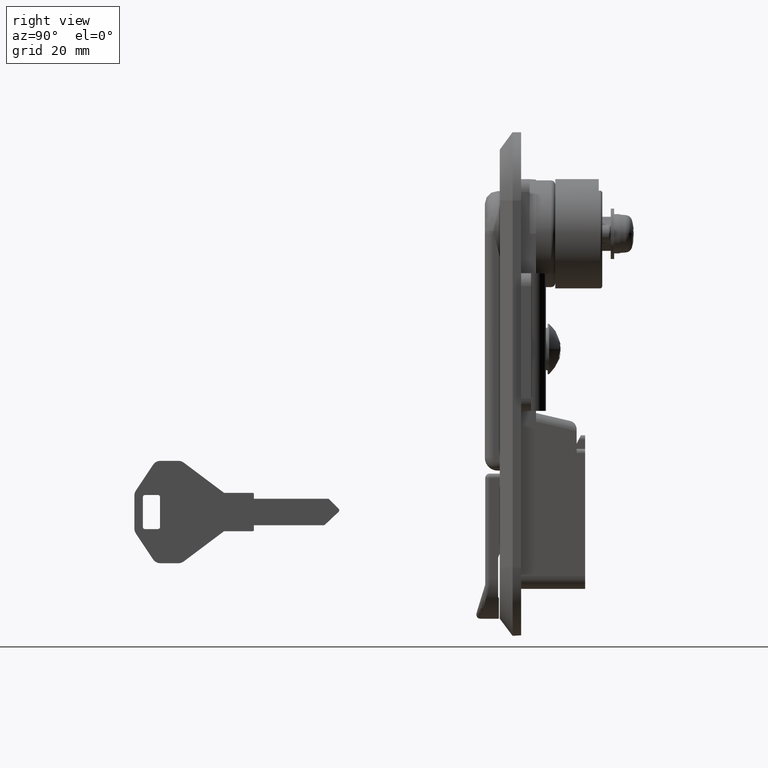
[diagram: clean part render]
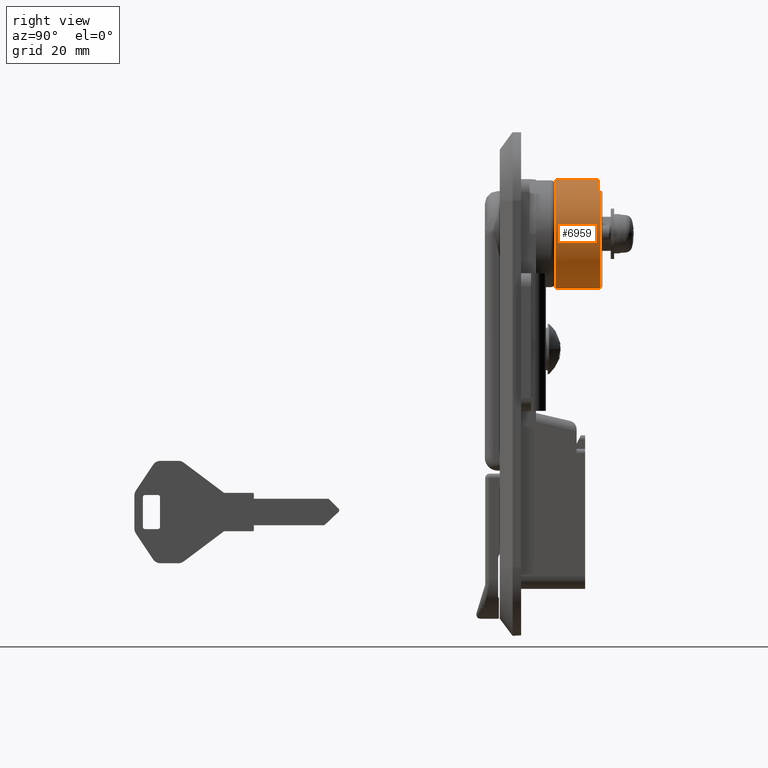
[diagram: same view with one face highlighted and labeled with its STEP entity id]
A machine part, right view. The second image highlights one B-rep face of the part: STEP entity #6959.
In plain terms, the highlighted cylindrical surface (partial cylindrical patch) has radius 12.8 mm, axis along (0, -1, 0).
Its self-contained STEP definition (entity closure, byte-faithful):
#6827 = VERTEX_POINT ( 'NONE', #12601 ) ;
#6829 = EDGE_CURVE ( 'NONE', #6849, #6827, #12600, .T. ) ;
#6849 = VERTEX_POINT ( 'NONE', #12621 ) ;
#6875 = VERTEX_POINT ( 'NONE', #12697 ) ;
#6877 = EDGE_CURVE ( 'NONE', #6875, #6878, #12696, .T. ) ;
#6878 = VERTEX_POINT ( 'NONE', #12692 ) ;
#6881 = VERTEX_POINT ( 'NONE', #12686 ) ;
#6883 = EDGE_CURVE ( 'NONE', #6884, #6881, #12685, .T. ) ;
#6884 = VERTEX_POINT ( 'NONE', #12681 ) ;
#6959 = ADVANCED_FACE ( 'NONE', ( #12867 ), #12865, .T. ) ;
#6960 = EDGE_LOOP ( 'NONE', ( #6961, #6962, #6964, #6965, #6967, #7023 ) ) ;
#6961 = ORIENTED_EDGE ( 'NONE', *, *, #6877, .F. ) ;
#6962 = ORIENTED_EDGE ( 'NONE', *, *, #6963, .T. ) ;
#6963 = EDGE_CURVE ( 'NONE', #6875, #6849, #12860, .T. ) ;
#6964 = ORIENTED_EDGE ( 'NONE', *, *, #6829, .T. ) ;
#6965 = ORIENTED_EDGE ( 'NONE', *, *, #6966, .F. ) ;
#6966 = EDGE_CURVE ( 'NONE', #6884, #6827, #12856, .T. ) ;
#6967 = ORIENTED_EDGE ( 'NONE', *, *, #6883, .T. ) ;
#7023 = ORIENTED_EDGE ( 'NONE', *, *, #7024, .T. ) ;
#7024 = EDGE_CURVE ( 'NONE', #6881, #6878, #12966, .T. ) ;
#12597 = DIRECTION ( 'NONE',  ( -1.000000000000000000, 0.0000000000000000000, 0.0000000000000000000 ) ) ;
#12598 = VECTOR ( 'NONE', #12597, 1000.000000000000000 ) ;
#12599 = CARTESIAN_POINT ( 'NONE',  ( 1023.200000000000200, -8.135593209581678300, 9.881909139476009700 ) ) ;
#12600 = LINE ( 'NONE', #12599, #12598 ) ;
#12601 = CARTESIAN_POINT ( 'NONE',  ( 23.19999999999999900, -8.135593209581678300, 9.881909139476009700 ) ) ;
#12621 = CARTESIAN_POINT ( 'NONE',  ( 23.50000000000000000, -8.135593209581678300, 9.881909139476009700 ) ) ;
#12681 = CARTESIAN_POINT ( 'NONE',  ( 23.19999999999999900, 0.0000000000000000000, 12.80000000000001500 ) ) ;
#12682 = DIRECTION ( 'NONE',  ( -1.000000000000000000, 0.0000000000000000000, 0.0000000000000000000 ) ) ;
#12683 = VECTOR ( 'NONE', #12682, 1000.000000000000000 ) ;
#12684 = CARTESIAN_POINT ( 'NONE',  ( 1012.999999999999900, 0.0000000000000000000, 12.80000000000001500 ) ) ;
#12685 = LINE ( 'NONE', #12684, #12683 ) ;
#12686 = CARTESIAN_POINT ( 'NONE',  ( 13.00000000000000000, 0.0000000000000000000, 12.80000000000001500 ) ) ;
#12692 = CARTESIAN_POINT ( 'NONE',  ( 13.00000000000000000, 1.567547902908612200E-015, -12.79999999999998600 ) ) ;
#12693 = DIRECTION ( 'NONE',  ( -1.000000000000000000, 0.0000000000000000000, 0.0000000000000000000 ) ) ;
#12694 = VECTOR ( 'NONE', #12693, 1000.000000000000000 ) ;
#12695 = CARTESIAN_POINT ( 'NONE',  ( 1012.999999999999900, 1.567547902908612200E-015, -12.79999999999998600 ) ) ;
#12696 = LINE ( 'NONE', #12695, #12694 ) ;
#12697 = CARTESIAN_POINT ( 'NONE',  ( 23.50000000000000000, 1.567547902908612200E-015, -12.79999999999998600 ) ) ;
#12852 = DIRECTION ( 'NONE',  ( 0.0000000000000000000, 0.0000000000000000000, 1.000000000000000000 ) ) ;
#12853 = DIRECTION ( 'NONE',  ( 1.000000000000000000, 0.0000000000000000000, 0.0000000000000000000 ) ) ;
#12854 = CARTESIAN_POINT ( 'NONE',  ( 23.19999999999999900, 0.0000000000000000000, 1.421085471520200100E-014 ) ) ;
#12855 = AXIS2_PLACEMENT_3D ( 'NONE', #12854, #12853, #12852 ) ;
#12856 = CIRCLE ( 'NONE', #12855, 12.80000000000000100 ) ;
#12857 = DIRECTION ( 'NONE',  ( 0.0000000000000000000, 0.0000000000000000000, 1.000000000000000000 ) ) ;
#12858 = DIRECTION ( 'NONE',  ( -1.000000000000000000, 0.0000000000000000000, 0.0000000000000000000 ) ) ;
#12859 = AXIS2_PLACEMENT_3D ( 'NONE', #12866, #12858, #12857 ) ;
#12860 = CIRCLE ( 'NONE', #12859, 12.80000000000000100 ) ;
#12861 = DIRECTION ( 'NONE',  ( 0.0000000000000000000, 0.0000000000000000000, 1.000000000000000000 ) ) ;
#12862 = DIRECTION ( 'NONE',  ( -1.000000000000000000, 0.0000000000000000000, 0.0000000000000000000 ) ) ;
#12863 = CARTESIAN_POINT ( 'NONE',  ( 1012.999999999999900, 0.0000000000000000000, 1.421085471520200100E-014 ) ) ;
#12864 = AXIS2_PLACEMENT_3D ( 'NONE', #12863, #12862, #12861 ) ;
#12865 = CYLINDRICAL_SURFACE ( 'NONE', #12864, 12.80000000000000100 ) ;
#12866 = CARTESIAN_POINT ( 'NONE',  ( 23.50000000000000000, 0.0000000000000000000, 1.421085471520200100E-014 ) ) ;
#12867 = FACE_OUTER_BOUND ( 'NONE', #6960, .T. ) ;
#12962 = DIRECTION ( 'NONE',  ( 0.0000000000000000000, 0.0000000000000000000, 1.000000000000000000 ) ) ;
#12963 = DIRECTION ( 'NONE',  ( 1.000000000000000000, 0.0000000000000000000, 0.0000000000000000000 ) ) ;
#12964 = CARTESIAN_POINT ( 'NONE',  ( 13.00000000000000000, 0.0000000000000000000, 1.421085471520200100E-014 ) ) ;
#12965 = AXIS2_PLACEMENT_3D ( 'NONE', #12964, #12963, #12962 ) ;
#12966 = CIRCLE ( 'NONE', #12965, 12.80000000000000100 ) ;